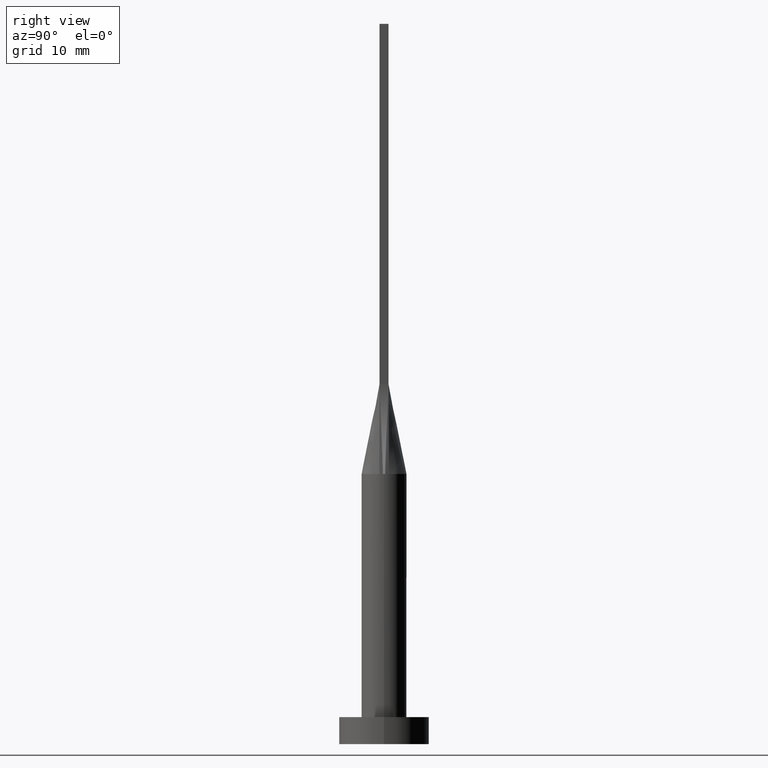
[diagram: clean part render]
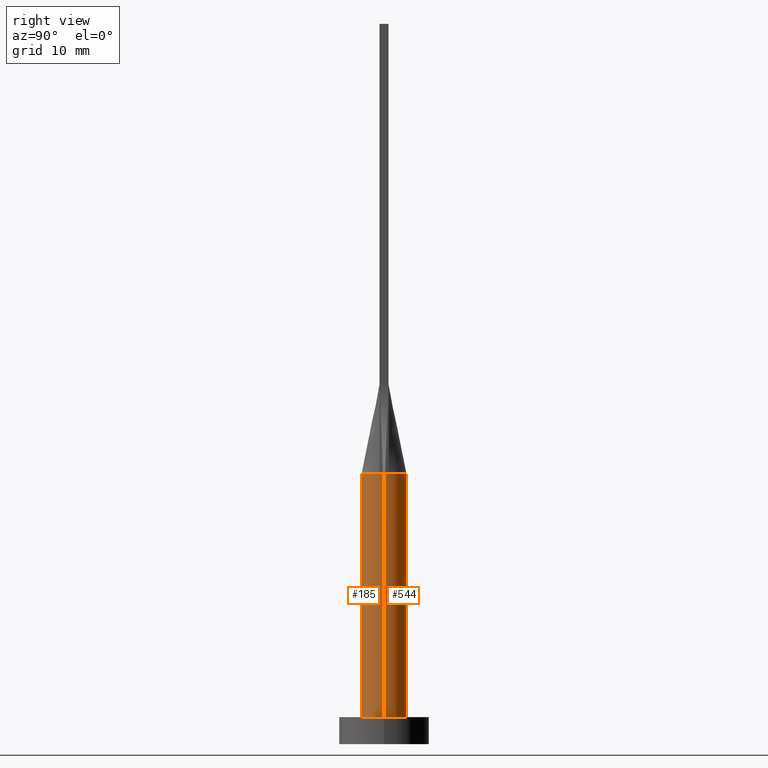
[diagram: same view with one multi-face feature highlighted, each face labeled with its STEP entity id]
A machine part, right view. The highlighted faces form ONE feature: a constant-radius fillet chain: 2 tangent blend faces with common blend radius 2.5 mm. The faces share edges in the B-rep.
Their STEP definitions:
[1] entity #185 (Cylinder):
#6 = CARTESIAN_POINT ( 'NONE',  ( 0.000000000000000000, 0.000000000000000000, 30.00000000000000000 ) ) ;
#11 = CARTESIAN_POINT ( 'NONE',  ( 2.440706242928429415, -0.5423794613208688942, 30.00000000000000000 ) ) ;
#14 = CIRCLE ( 'NONE', #331, 2.500000000000000000 ) ;
#29 = CARTESIAN_POINT ( 'NONE',  ( 0.000000000000000000, 0.000000000000000000, 30.00000000000000000 ) ) ;
#44 = CIRCLE ( 'NONE', #285, 2.500000000000000000 ) ;
#54 = ORIENTED_EDGE ( 'NONE', *, *, #532, .F. ) ;
#61 = CARTESIAN_POINT ( 'NONE',  ( 2.500000000000000000, 3.061616997868383141E-16, 3.000000000000000000 ) ) ;
#64 = VECTOR ( 'NONE', #238, 1000.000000000000000 ) ;
#72 = ORIENTED_EDGE ( 'NONE', *, *, #526, .F. ) ;
#80 = CARTESIAN_POINT ( 'NONE',  ( 0.000000000000000000, 0.000000000000000000, 30.00000000000000000 ) ) ;
#99 = CARTESIAN_POINT ( 'NONE',  ( -2.440688158044365785, -0.5423755258804862089, 30.00000000000000000 ) ) ;
#105 = FACE_OUTER_BOUND ( 'NONE', #541, .T. ) ;
#111 = VERTEX_POINT ( 'NONE', #99 ) ;
#113 = DIRECTION ( 'NONE',  ( -0.000000000000000000, -0.000000000000000000, -1.000000000000000000 ) ) ;
#154 = VERTEX_POINT ( 'NONE', #61 ) ;
#175 = CIRCLE ( 'NONE', #396, 2.500000000000000000 ) ;
#178 = DIRECTION ( 'NONE',  ( 0.000000000000000000, 0.000000000000000000, 1.000000000000000000 ) ) ;
#185 = ADVANCED_FACE ( 'NONE', ( #105 ), #522, .T. ) ;
#213 = DIRECTION ( 'NONE',  ( 0.000000000000000000, 0.000000000000000000, 1.000000000000000000 ) ) ;
#237 = ORIENTED_EDGE ( 'NONE', *, *, #537, .T. ) ;
#238 = DIRECTION ( 'NONE',  ( -0.000000000000000000, -0.000000000000000000, -1.000000000000000000 ) ) ;
#248 = LINE ( 'NONE', #437, #473 ) ;
#249 = ORIENTED_EDGE ( 'NONE', *, *, #552, .F. ) ;
#254 = DIRECTION ( 'NONE',  ( 0.000000000000000000, 0.000000000000000000, 1.000000000000000000 ) ) ;
#263 = VERTEX_POINT ( 'NONE', #433 ) ;
#266 = ORIENTED_EDGE ( 'NONE', *, *, #458, .T. ) ;
#285 = AXIS2_PLACEMENT_3D ( 'NONE', #80, #213, #317 ) ;
#304 = DIRECTION ( 'NONE',  ( 0.000000000000000000, 0.000000000000000000, 1.000000000000000000 ) ) ;
#313 = CIRCLE ( 'NONE', #547, 2.500000000000000000 ) ;
#317 = DIRECTION ( 'NONE',  ( 1.000000000000000000, -4.440892098500626162E-15, 0.000000000000000000 ) ) ;
#331 = AXIS2_PLACEMENT_3D ( 'NONE', #6, #178, #377 ) ;
#338 = AXIS2_PLACEMENT_3D ( 'NONE', #343, #390, #535 ) ;
#343 = CARTESIAN_POINT ( 'NONE',  ( 0.000000000000000000, 0.000000000000000000, 30.00000000000000000 ) ) ;
#348 = ORIENTED_EDGE ( 'NONE', *, *, #436, .F. ) ;
#349 = CARTESIAN_POINT ( 'NONE',  ( 0.000000000000000000, 0.000000000000000000, 3.000000000000000000 ) ) ;
#370 = CARTESIAN_POINT ( 'NONE',  ( -2.500000000000000000, 0.000000000000000000, 30.00000000000000000 ) ) ;
#377 = DIRECTION ( 'NONE',  ( 1.000000000000000000, 0.000000000000000000, 0.000000000000000000 ) ) ;
#388 = VERTEX_POINT ( 'NONE', #581 ) ;
#390 = DIRECTION ( 'NONE',  ( -0.000000000000000000, -0.000000000000000000, -1.000000000000000000 ) ) ;
#396 = AXIS2_PLACEMENT_3D ( 'NONE', #349, #254, #443 ) ;
#397 = DIRECTION ( 'NONE',  ( 1.000000000000000000, 0.000000000000000000, 0.000000000000000000 ) ) ;
#433 = CARTESIAN_POINT ( 'NONE',  ( -2.500000000000000000, 0.000000000000000000, 3.000000000000000000 ) ) ;
#436 = EDGE_CURVE ( 'NONE', #111, #564, #14, .T. ) ;
#437 = CARTESIAN_POINT ( 'NONE',  ( 2.500000000000000000, 3.061616997868383141E-16, 30.00000000000000000 ) ) ;
#443 = DIRECTION ( 'NONE',  ( 1.000000000000000000, 0.000000000000000000, 0.000000000000000000 ) ) ;
#458 = EDGE_CURVE ( 'NONE', #388, #263, #555, .T. ) ;
#473 = VECTOR ( 'NONE', #113, 1000.000000000000000 ) ;
#505 = VERTEX_POINT ( 'NONE', #561 ) ;
#522 = CYLINDRICAL_SURFACE ( 'NONE', #338, 2.500000000000000000 ) ;
#526 = EDGE_CURVE ( 'NONE', #388, #111, #313, .T. ) ;
#532 = EDGE_CURVE ( 'NONE', #505, #154, #248, .T. ) ;
#535 = DIRECTION ( 'NONE',  ( -1.000000000000000000, 0.000000000000000000, 0.000000000000000000 ) ) ;
#537 = EDGE_CURVE ( 'NONE', #263, #154, #175, .T. ) ;
#541 = EDGE_LOOP ( 'NONE', ( #54, #249, #348, #72, #266, #237 ) ) ;
#547 = AXIS2_PLACEMENT_3D ( 'NONE', #29, #304, #397 ) ;
#552 = EDGE_CURVE ( 'NONE', #564, #505, #44, .T. ) ;
#555 = LINE ( 'NONE', #370, #64 ) ;
#561 = CARTESIAN_POINT ( 'NONE',  ( 2.499645589935823420, 5.999196936655281332E-16, 30.00000000000000000 ) ) ;
#564 = VERTEX_POINT ( 'NONE', #11 ) ;
#581 = CARTESIAN_POINT ( 'NONE',  ( -2.499645589935823420, -1.700711608024726496E-15, 30.00000000000000000 ) ) ;
[2] entity #544 (Cylinder):
#3 = CIRCLE ( 'NONE', #340, 2.500000000000000000 ) ;
#4 = CARTESIAN_POINT ( 'NONE',  ( -0.6674771052374470770, 2.430579781493059421, 29.99999999999998934 ) ) ;
#30 = AXIS2_PLACEMENT_3D ( 'NONE', #401, #465, #35 ) ;
#35 = DIRECTION ( 'NONE',  ( -1.000000000000000000, 0.000000000000000000, 0.000000000000000000 ) ) ;
#61 = CARTESIAN_POINT ( 'NONE',  ( 2.500000000000000000, 3.061616997868383141E-16, 3.000000000000000000 ) ) ;
#64 = VECTOR ( 'NONE', #238, 1000.000000000000000 ) ;
#78 = CARTESIAN_POINT ( 'NONE',  ( 1.935644909179608186, 1.608159499248285051, 29.99999999999999645 ) ) ;
#84 = CARTESIAN_POINT ( 'NONE',  ( -1.935644909179609297, 1.608159499248285718, 30.00000000000001066 ) ) ;
#113 = DIRECTION ( 'NONE',  ( -0.000000000000000000, -0.000000000000000000, -1.000000000000000000 ) ) ;
#116 = EDGE_CURVE ( 'NONE', #505, #446, #243, .T. ) ;
#125 = CARTESIAN_POINT ( 'NONE',  ( 2.440676307083422980, 0.5423728264510006003, 30.00000000000000000 ) ) ;
#128 = CARTESIAN_POINT ( 'NONE',  ( -1.519400572660313253, 2.006070808634367264, 30.00000000000001421 ) ) ;
#154 = VERTEX_POINT ( 'NONE', #61 ) ;
#158 = DIRECTION ( 'NONE',  ( 1.000000000000000000, 0.000000000000000000, 0.000000000000000000 ) ) ;
#167 = CARTESIAN_POINT ( 'NONE',  ( -2.093723281432891437, 1.388001797188529451, 30.00000000000000000 ) ) ;
#198 = ORIENTED_EDGE ( 'NONE', *, *, #458, .F. ) ;
#205 = FACE_OUTER_BOUND ( 'NONE', #442, .T. ) ;
#207 = ORIENTED_EDGE ( 'NONE', *, *, #532, .T. ) ;
#208 = EDGE_CURVE ( 'NONE', #154, #263, #3, .T. ) ;
#214 = CARTESIAN_POINT ( 'NONE',  ( 0.3342381693191150416, 2.499999999999999556, 30.00000000000000355 ) ) ;
#218 = CARTESIAN_POINT ( 'NONE',  ( -2.396350003401058082, 0.7408555563113466969, 30.00000000000000000 ) ) ;
#219 = EDGE_CURVE ( 'NONE', #357, #388, #486, .T. ) ;
#238 = DIRECTION ( 'NONE',  ( -0.000000000000000000, -0.000000000000000000, -1.000000000000000000 ) ) ;
#243 = CIRCLE ( 'NONE', #308, 2.500000000000000000 ) ;
#248 = LINE ( 'NONE', #437, #473 ) ;
#262 = CARTESIAN_POINT ( 'NONE',  ( 1.519400572660313031, 2.006070808634367708, 30.00000000000000000 ) ) ;
#263 = VERTEX_POINT ( 'NONE', #433 ) ;
#273 = B_SPLINE_CURVE_WITH_KNOTS ( 'NONE', 3,
 ( #125, #322, #362, #315, #78, #262, #507, #579, #214, #405, #4, #320, #128, #84, #167, #502, #218, #408 ),
 .UNSPECIFIED., .F., .F.,
 ( 4, 2, 2, 2, 2, 2, 2, 2, 4 ),
 ( 0.000000000000000000, 0.1249999999999999722, 0.2500000000000000000, 0.3750000000000000000, 0.5000000000000001110, 0.6250000000000001110, 0.7500000000000000000, 0.8750000000000000000, 1.000000000000000000 ),
 .UNSPECIFIED. ) ;
#286 = DIRECTION ( 'NONE',  ( 1.000000000000000000, 0.000000000000000000, 0.000000000000000000 ) ) ;
#298 = ORIENTED_EDGE ( 'NONE', *, *, #116, .F. ) ;
#303 = ORIENTED_EDGE ( 'NONE', *, *, #208, .T. ) ;
#308 = AXIS2_PLACEMENT_3D ( 'NONE', #419, #328, #286 ) ;
#310 = DIRECTION ( 'NONE',  ( 1.000000000000000000, 0.000000000000000000, 0.000000000000000000 ) ) ;
#315 = CARTESIAN_POINT ( 'NONE',  ( 2.093723281432890104, 1.388001797188529007, 29.99999999999998934 ) ) ;
#320 = CARTESIAN_POINT ( 'NONE',  ( -1.260416918790968843, 2.182794756967428196, 29.99999999999999289 ) ) ;
#322 = CARTESIAN_POINT ( 'NONE',  ( 2.396350003401058526, 0.7408555563113465858, 30.00000000000000355 ) ) ;
#328 = DIRECTION ( 'NONE',  ( 0.000000000000000000, 0.000000000000000000, 1.000000000000000000 ) ) ;
#332 = CARTESIAN_POINT ( 'NONE',  ( 2.440676307083422980, 0.5423728264510006003, 30.00000000000000000 ) ) ;
#340 = AXIS2_PLACEMENT_3D ( 'NONE', #347, #444, #158 ) ;
#347 = CARTESIAN_POINT ( 'NONE',  ( 0.000000000000000000, 0.000000000000000000, 3.000000000000000000 ) ) ;
#357 = VERTEX_POINT ( 'NONE', #457 ) ;
#360 = AXIS2_PLACEMENT_3D ( 'NONE', #525, #530, #310 ) ;
#362 = CARTESIAN_POINT ( 'NONE',  ( 2.323660390030918954, 0.9543733860570833283, 30.00000000000000711 ) ) ;
#370 = CARTESIAN_POINT ( 'NONE',  ( -2.500000000000000000, 0.000000000000000000, 30.00000000000000000 ) ) ;
#388 = VERTEX_POINT ( 'NONE', #581 ) ;
#400 = EDGE_CURVE ( 'NONE', #446, #357, #273, .T. ) ;
#401 = CARTESIAN_POINT ( 'NONE',  ( 0.000000000000000000, 0.000000000000000000, 30.00000000000000000 ) ) ;
#405 = CARTESIAN_POINT ( 'NONE',  ( -0.3342381693191151526, 2.499999999999999556, 30.00000000000000355 ) ) ;
#408 = CARTESIAN_POINT ( 'NONE',  ( -2.440694335308545071, 0.5423767520433731004, 30.00000000000000000 ) ) ;
#419 = CARTESIAN_POINT ( 'NONE',  ( 0.000000000000000000, 0.000000000000000000, 30.00000000000000000 ) ) ;
#433 = CARTESIAN_POINT ( 'NONE',  ( -2.500000000000000000, 0.000000000000000000, 3.000000000000000000 ) ) ;
#437 = CARTESIAN_POINT ( 'NONE',  ( 2.500000000000000000, 3.061616997868383141E-16, 30.00000000000000000 ) ) ;
#442 = EDGE_LOOP ( 'NONE', ( #298, #207, #303, #198, #448, #536 ) ) ;
#444 = DIRECTION ( 'NONE',  ( 0.000000000000000000, 0.000000000000000000, 1.000000000000000000 ) ) ;
#446 = VERTEX_POINT ( 'NONE', #332 ) ;
#448 = ORIENTED_EDGE ( 'NONE', *, *, #219, .F. ) ;
#457 = CARTESIAN_POINT ( 'NONE',  ( -2.440694335308545071, 0.5423767520433731004, 30.00000000000000000 ) ) ;
#458 = EDGE_CURVE ( 'NONE', #388, #263, #555, .T. ) ;
#465 = DIRECTION ( 'NONE',  ( -0.000000000000000000, -0.000000000000000000, -1.000000000000000000 ) ) ;
#473 = VECTOR ( 'NONE', #113, 1000.000000000000000 ) ;
#486 = CIRCLE ( 'NONE', #360, 2.500000000000000000 ) ;
#502 = CARTESIAN_POINT ( 'NONE',  ( -2.323660390030918510, 0.9543733860570832173, 30.00000000000000000 ) ) ;
#505 = VERTEX_POINT ( 'NONE', #561 ) ;
#507 = CARTESIAN_POINT ( 'NONE',  ( 1.260416918790968843, 2.182794756967427752, 29.99999999999999645 ) ) ;
#520 = CYLINDRICAL_SURFACE ( 'NONE', #30, 2.500000000000000000 ) ;
#525 = CARTESIAN_POINT ( 'NONE',  ( 0.000000000000000000, 0.000000000000000000, 30.00000000000000000 ) ) ;
#530 = DIRECTION ( 'NONE',  ( 0.000000000000000000, 0.000000000000000000, 1.000000000000000000 ) ) ;
#532 = EDGE_CURVE ( 'NONE', #505, #154, #248, .T. ) ;
#536 = ORIENTED_EDGE ( 'NONE', *, *, #400, .F. ) ;
#544 = ADVANCED_FACE ( 'NONE', ( #205 ), #520, .T. ) ;
#555 = LINE ( 'NONE', #370, #64 ) ;
#561 = CARTESIAN_POINT ( 'NONE',  ( 2.499645589935823420, 5.999196936655281332E-16, 30.00000000000000000 ) ) ;
#579 = CARTESIAN_POINT ( 'NONE',  ( 0.6674771052374470770, 2.430579781493058977, 29.99999999999998224 ) ) ;
#581 = CARTESIAN_POINT ( 'NONE',  ( -2.499645589935823420, -1.700711608024726496E-15, 30.00000000000000000 ) ) ;